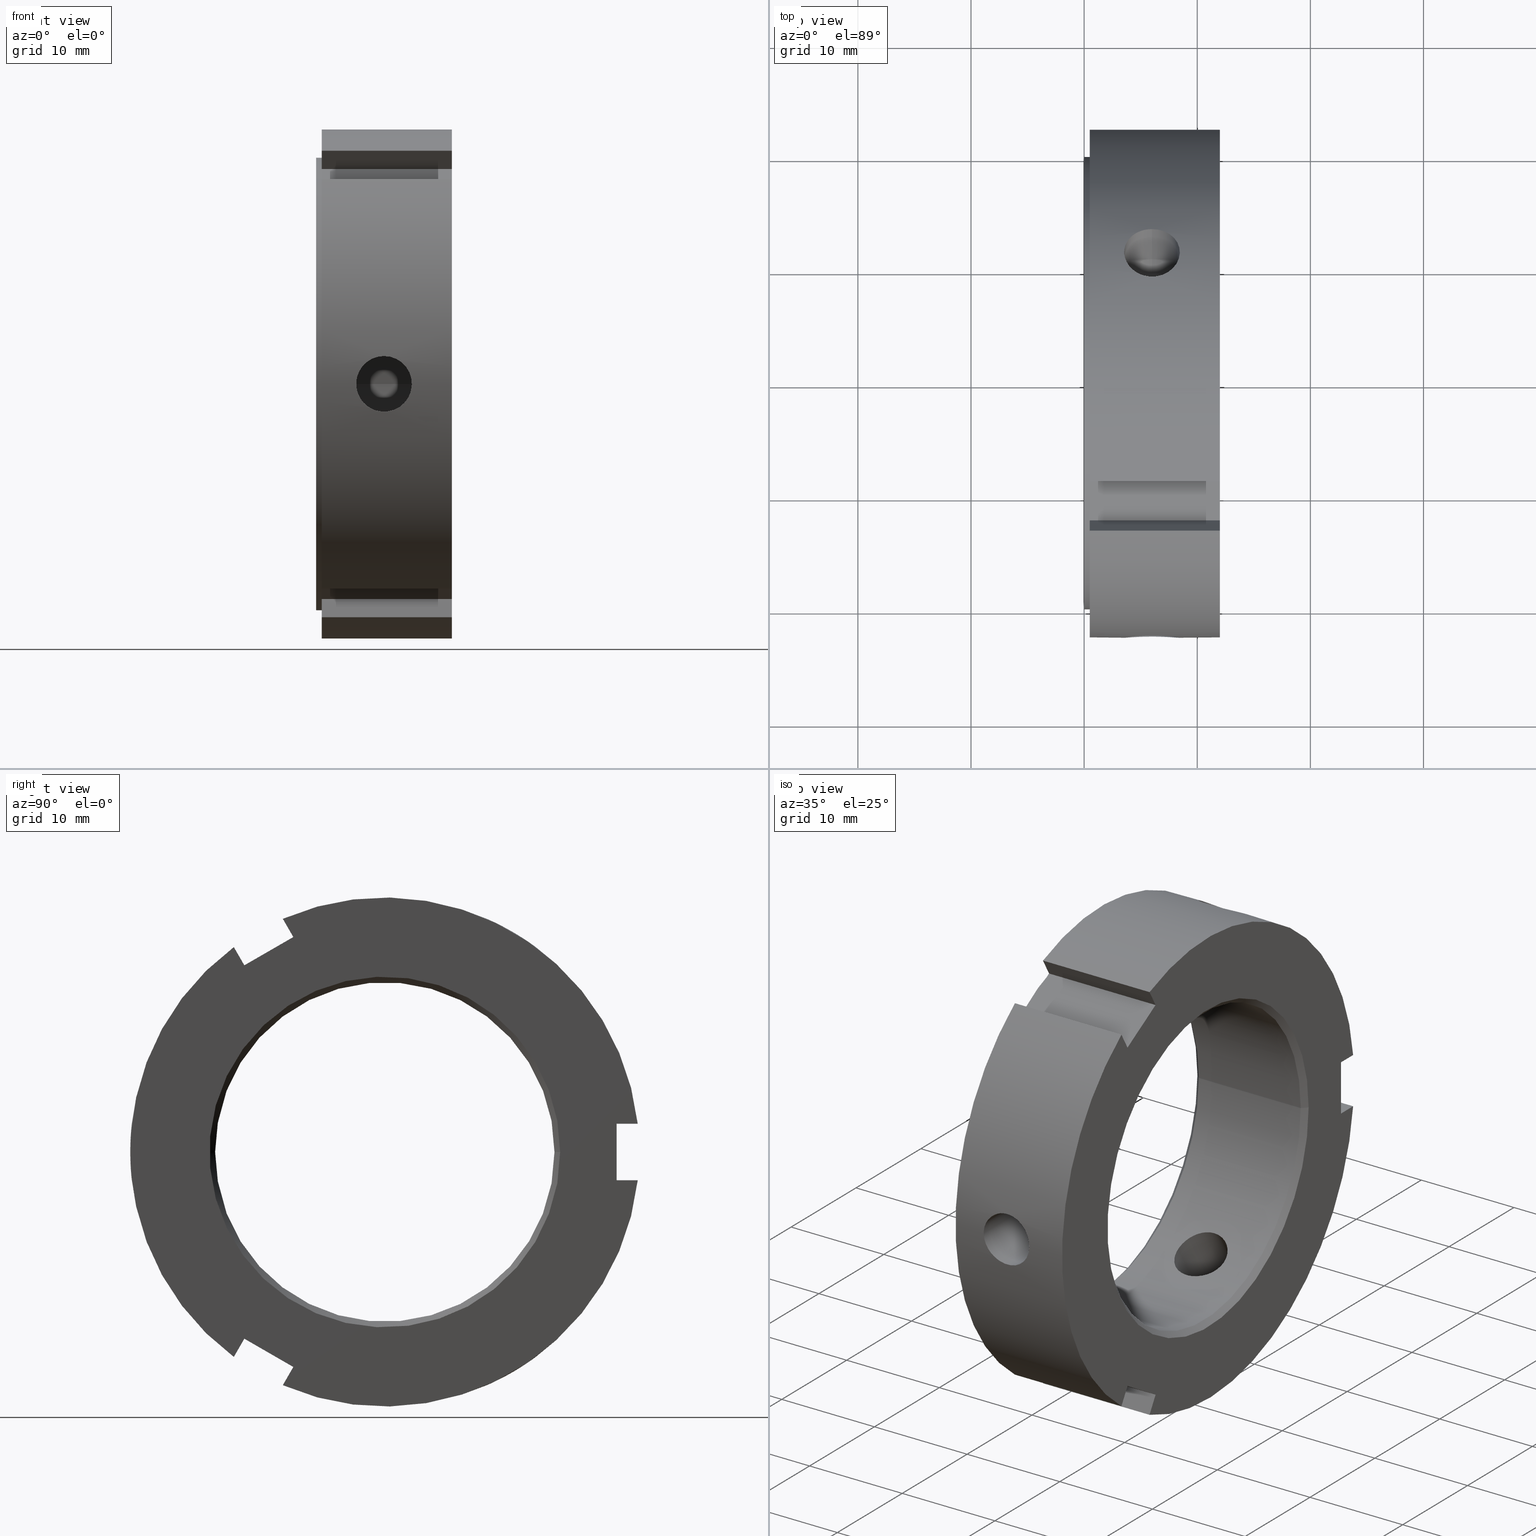
[diagram: canonical four-view strip — front | top / right | iso, engineering-drawing reading convention]
A machine part, canonical four-view strip (front | top / right | iso — engineering-drawing reading convention). The complete STEP part file that produces these views, byte-faithful:
ISO-10303-21;
HEADER;
/****************************************************************
 * Generated by software with PDE/Lib inside                    *
 * PDElib Version v51a, created Thu 01/14/2010                  *
 * ITI Transcendata (http://www.transcendata.com/)              *
 ****************************************************************/
FILE_DESCRIPTION((''),'2;1');
FILE_NAME('\\\\CAD-SVN\\cad-svn\\\X2\628088538AB2\X0\\\FKD\X2\88FD4F5C\X0\SP\\\X2\90E854C130E930A430D630E930EA\X0\\\HP \X2\30A230C330D730C730FC30C87528\X0\CAD\X2\30C730FC30BFFF0867007D42FF09\X0\\\3D data\\ZMT\\FKD ZMT 30.stp','2014-07-16T14:44:36',('fkd-ct1n'),(''),'Autodesk Inventor 2011','Autodesk Inventor 2011','');
FILE_SCHEMA(('AUTOMOTIVE_DESIGN { 1 0 10303 214 1 1 1 1 }'));
ENDSEC;
DATA;
#5=APPLICATION_CONTEXT('automotive design');
#6=APPLICATION_PROTOCOL_DEFINITION('International Standard','automotive_design',2001,#5);
#7=PRODUCT_CONTEXT('',#5,'mechanical');
#8=PRODUCT('FKD ZMT 30','FKD ZMT 30',$,(#7));
#9=PRODUCT_RELATED_PRODUCT_CATEGORY('part',$,(#8));
#10=PRODUCT_DEFINITION_FORMATION('',$,#8);
#11=PRODUCT_DEFINITION_CONTEXT('part definition',#5,'design');
#12=PRODUCT_DEFINITION('',$,#10,#11);
#18=(NAMED_UNIT(*)PLANE_ANGLE_UNIT()SI_UNIT($,.RADIAN.));
#19=DIMENSIONAL_EXPONENTS(0.0,0.0,0.0,0.0,0.0,0.0,0.0);
#20=PLANE_ANGLE_MEASURE_WITH_UNIT(PLANE_ANGLE_MEASURE(0.017453292500000),#18);
#24=(CONVERSION_BASED_UNIT('DEGREE',#20)NAMED_UNIT(#19)PLANE_ANGLE_UNIT());
#28=(NAMED_UNIT(*)SI_UNIT($,.STERADIAN.)SOLID_ANGLE_UNIT());
#32=(LENGTH_UNIT()NAMED_UNIT(*)SI_UNIT(.MILLI.,.METRE.));
#34=UNCERTAINTY_MEASURE_WITH_UNIT(LENGTH_MEASURE(0.010000000000000),#32,'DISTANCE_ACCURACY_VALUE','');
#36=(GEOMETRIC_REPRESENTATION_CONTEXT(3)GLOBAL_UNCERTAINTY_ASSIGNED_CONTEXT((#34))GLOBAL_UNIT_ASSIGNED_CONTEXT((#24,#28,#32))REPRESENTATION_CONTEXT('None','None'));
#37=AXIS2_PLACEMENT_3D('',#38,#39,#40);
#38=CARTESIAN_POINT('',(0.0,0.0,0.0));
#39=DIRECTION('',(0.0,0.0,1.0));
#40=DIRECTION('',(1.0,0.0,0.0));
#41=SHAPE_REPRESENTATION('',(#37),#36);
#42=PRODUCT_DEFINITION_SHAPE('','',#12);
#43=SHAPE_DEFINITION_REPRESENTATION(#42,#41);
#49=(NAMED_UNIT(*)PLANE_ANGLE_UNIT()SI_UNIT($,.RADIAN.));
#50=DIMENSIONAL_EXPONENTS(0.0,0.0,0.0,0.0,0.0,0.0,0.0);
#51=PLANE_ANGLE_MEASURE_WITH_UNIT(PLANE_ANGLE_MEASURE(0.017453292500000),#49);
#55=(CONVERSION_BASED_UNIT('DEGREE',#51)NAMED_UNIT(#50)PLANE_ANGLE_UNIT());
#59=(NAMED_UNIT(*)SI_UNIT($,.STERADIAN.)SOLID_ANGLE_UNIT());
#63=(LENGTH_UNIT()NAMED_UNIT(*)SI_UNIT(.MILLI.,.METRE.));
#65=UNCERTAINTY_MEASURE_WITH_UNIT(LENGTH_MEASURE(0.000001000000000),#63,'DISTANCE_ACCURACY_VALUE','');
#67=(GEOMETRIC_REPRESENTATION_CONTEXT(3)GLOBAL_UNCERTAINTY_ASSIGNED_CONTEXT((#65))GLOBAL_UNIT_ASSIGNED_CONTEXT((#55,#59,#63))REPRESENTATION_CONTEXT('','3D'));
#68=CARTESIAN_POINT('',(11.749999999999998,0.0,0.0));
#69=DIRECTION('',(1.0,0.0,0.0));
#70=DIRECTION('',(0.0,-1.0,0.0));
#71=AXIS2_PLACEMENT_3D('',#68,#69,#70);
#72=CONICAL_SURFACE('',#71,15.250000000000000,45.000000000000021);
#73=CARTESIAN_POINT('',(11.999999999999996,15.500000000000000,1.898203E-015));
#74=VERTEX_POINT('',#73);
#75=CARTESIAN_POINT('',(11.999999999999996,0.0,0.0));
#76=DIRECTION('',(1.0,0.0,0.0));
#77=DIRECTION('',(0.0,-1.0,0.0));
#78=AXIS2_PLACEMENT_3D('',#75,#76,#77);
#79=CIRCLE('',#78,15.500000000000000);
#80=EDGE_CURVE('',#74,#74,#79,.T.);
#81=ORIENTED_EDGE('',*,*,#80,.T.);
#82=EDGE_LOOP('',(#81));
#83=FACE_OUTER_BOUND('',#82,.T.);
#84=CARTESIAN_POINT('',(11.499999999999996,15.0,-1.836970E-015));
#85=VERTEX_POINT('',#84);
#86=CARTESIAN_POINT('',(11.499999999999996,0.0,0.0));
#87=DIRECTION('',(-1.0,0.0,0.0));
#88=DIRECTION('',(0.0,-1.0,0.0));
#89=AXIS2_PLACEMENT_3D('',#86,#87,#88);
#90=CIRCLE('',#89,15.0);
#91=EDGE_CURVE('',#85,#85,#90,.T.);
#92=ORIENTED_EDGE('',*,*,#91,.T.);
#93=EDGE_LOOP('',(#92));
#94=FACE_BOUND('',#93,.T.);
#95=ADVANCED_FACE('',(#83,#94),#72,.F.);
#96=CARTESIAN_POINT('',(5.999999999999996,0.0,0.0));
#97=DIRECTION('',(1.0,0.0,0.0));
#98=DIRECTION('',(0.0,1.0,0.0));
#99=AXIS2_PLACEMENT_3D('',#96,#97,#98);
#100=CYLINDRICAL_SURFACE('',#99,15.0);
#101=CARTESIAN_POINT('',(0.499999999999996,15.0,1.836970E-015));
#102=VERTEX_POINT('',#101);
#103=CARTESIAN_POINT('',(0.499999999999996,0.0,0.0));
#104=DIRECTION('',(1.0,0.0,0.0));
#105=DIRECTION('',(0.0,-1.0,0.0));
#106=AXIS2_PLACEMENT_3D('',#103,#104,#105);
#107=CIRCLE('',#106,15.0);
#108=EDGE_CURVE('',#102,#102,#107,.T.);
#109=ORIENTED_EDGE('',*,*,#108,.F.);
#110=EDGE_LOOP('',(#109));
#111=FACE_OUTER_BOUND('',#110,.T.);
#112=CARTESIAN_POINT('',(5.999999999999995,9.527700645279179,11.585461596930299));
#113=VERTEX_POINT('',#112);
#114=CARTESIAN_POINT('',(5.999999999999995,9.527700645279175,11.585461596930299));
#115=CARTESIAN_POINT('',(5.690701021672715,9.527700645279175,11.585461596930299));
#116=CARTESIAN_POINT('',(5.361174964781096,9.479419812042275,11.625692621913288));
#117=CARTESIAN_POINT('',(4.755621264227968,9.281214361478437,11.784531755638657));
#118=CARTESIAN_POINT('',(4.479544766165401,9.131027314108236,11.902625614815321));
#119=CARTESIAN_POINT('',(4.043616630616774,8.778934752417003,12.164639680096281));
#120=CARTESIAN_POINT('',(3.854499635617677,8.553352753598116,12.326077867837174));
#121=CARTESIAN_POINT('',(3.603426014287461,8.047965060427615,12.661844151364663));
#122=CARTESIAN_POINT('',(3.541499999999993,7.767854087497213,12.835735427246515));
#123=CARTESIAN_POINT('',(3.541499999999995,7.232145912502784,13.145026686286634));
#124=CARTESIAN_POINT('',(3.603426014287466,6.941496163627408,13.300664266782212));
#125=CARTESIAN_POINT('',(3.854499635617683,6.398020185773064,13.570459706064138));
#126=CARTESIAN_POINT('',(4.043616630616775,6.145419614639087,13.685100353807318));
#127=CARTESIAN_POINT('',(4.479544766165402,5.742462497111326,13.859014424074982));
#128=CARTESIAN_POINT('',(4.755621264227972,5.565096691348296,13.930033292828623));
#129=CARTESIAN_POINT('',(5.361174964781100,5.328435241145096,14.022264681322763));
#130=CARTESIAN_POINT('',(5.690701021672715,5.269453734871088,14.043961596930304));
#131=CARTESIAN_POINT('',(6.309298978327273,5.269453734871088,14.043961596930304));
#132=CARTESIAN_POINT('',(6.638825035218885,5.328435241145096,14.022264681322763));
#133=CARTESIAN_POINT('',(7.244378735772017,5.565096691348296,13.930033292828622));
#134=CARTESIAN_POINT('',(7.520455233834587,5.742462497111327,13.859014424074982));
#135=CARTESIAN_POINT('',(7.956383369383212,6.145419614639087,13.685100353807318));
#136=CARTESIAN_POINT('',(8.145500364382306,6.398020185773064,13.570459706064138));
#137=CARTESIAN_POINT('',(8.396573985712523,6.941496163627408,13.300664266782212));
#138=CARTESIAN_POINT('',(8.458499999999994,7.232145912502784,13.145026686286634));
#139=CARTESIAN_POINT('',(8.458499999999996,7.767854087497214,12.835735427246515));
#140=CARTESIAN_POINT('',(8.396573985712529,8.047965060427615,12.661844151364663));
#141=CARTESIAN_POINT('',(8.145500364382311,8.553352753598116,12.326077867837173));
#142=CARTESIAN_POINT('',(7.956383369383215,8.778934752417003,12.164639680096281));
#143=CARTESIAN_POINT('',(7.520455233834589,9.131027314108236,11.902625614815319));
#144=CARTESIAN_POINT('',(7.244378735772021,9.281214361478437,11.784531755638657));
#145=CARTESIAN_POINT('',(6.638825035218892,9.479419812042274,11.625692621913288));
#146=CARTESIAN_POINT('',(6.309298978327273,9.527700645279175,11.585461596930299));
#147=CARTESIAN_POINT('',(5.999999999999995,9.527700645279175,11.585461596930299));
#148=B_SPLINE_CURVE_WITH_KNOTS('',3,(#114,#115,#116,#117,#118,#119,#120,#121,#122,#123,#124,#125,#126,#127,#128,#129,#130,#131,#132,#133,#134,#135,#136,#137,#138,#139,#140,#141,#142,#143,#144,#145,#146,#147),.UNSPECIFIED.,.T.,.U.,(4,2,2,2,2,2,2,2,2,2,2,2,2,2,2,2,4),(0.0,0.092789693498184,0.185579386996367,0.278366764708402,0.371154142420438,0.463941520132473,0.556728897844508,0.649518591342692,0.742308284840875,0.835097978339059,0.927887671837242,1.020675049549278,1.113462427261313,1.206249804973348,1.299037182685383,1.391826876183567,1.484616569681751),.UNSPECIFIED.);
#149=EDGE_CURVE('',#113,#113,#148,.T.);
#150=ORIENTED_EDGE('',*,*,#149,.T.);
#151=EDGE_LOOP('',(#150));
#152=FACE_BOUND('',#151,.T.);
#153=CARTESIAN_POINT('',(5.999999999999995,5.269453734871084,-14.043961596930306));
#154=VERTEX_POINT('',#153);
#155=CARTESIAN_POINT('',(5.999999999999995,5.269453734871085,-14.043961596930304));
#156=CARTESIAN_POINT('',(5.690701021672715,5.269453734871085,-14.043961596930304));
#157=CARTESIAN_POINT('',(5.361174964781102,5.328435241145092,-14.022264681322763));
#158=CARTESIAN_POINT('',(4.755621264227973,5.565096691348294,-13.930033292828625));
#159=CARTESIAN_POINT('',(4.479544766165403,5.742462497111327,-13.859014424074987));
#160=CARTESIAN_POINT('',(4.043616630616777,6.145419614639089,-13.685100353807321));
#161=CARTESIAN_POINT('',(3.854499635617676,6.398020185773067,-13.570459706064135));
#162=CARTESIAN_POINT('',(3.603426014287461,6.941496163627411,-13.300664266782210));
#163=CARTESIAN_POINT('',(3.541499999999994,7.232145912502784,-13.145026686286636));
#164=CARTESIAN_POINT('',(3.541499999999994,7.767854087497215,-12.835735427246519));
#165=CARTESIAN_POINT('',(3.603426014287464,8.047965060427613,-12.661844151364665));
#166=CARTESIAN_POINT('',(3.854499635617681,8.553352753598116,-12.326077867837174));
#167=CARTESIAN_POINT('',(4.043616630616774,8.778934752417008,-12.164639680096286));
#168=CARTESIAN_POINT('',(4.479544766165402,9.131027314108239,-11.902625614815323));
#169=CARTESIAN_POINT('',(4.755621264227973,9.281214361478437,-11.784531755638664));
#170=CARTESIAN_POINT('',(5.361174964781101,9.479419812042272,-11.625692621913295));
#171=CARTESIAN_POINT('',(5.690701021672715,9.527700645279172,-11.585461596930298));
#172=CARTESIAN_POINT('',(6.309298978327273,9.527700645279172,-11.585461596930298));
#173=CARTESIAN_POINT('',(6.638825035218885,9.479419812042272,-11.625692621913293));
#174=CARTESIAN_POINT('',(7.244378735772017,9.281214361478435,-11.784531755638660));
#175=CARTESIAN_POINT('',(7.520455233834587,9.131027314108239,-11.902625614815324));
#176=CARTESIAN_POINT('',(7.956383369383214,8.778934752417008,-12.164639680096286));
#177=CARTESIAN_POINT('',(8.145500364382308,8.553352753598118,-12.326077867837174));
#178=CARTESIAN_POINT('',(8.396573985712525,8.047965060427615,-12.661844151364665));
#179=CARTESIAN_POINT('',(8.458499999999994,7.767854087497215,-12.835735427246519));
#180=CARTESIAN_POINT('',(8.458499999999994,7.232145912502784,-13.145026686286638));
#181=CARTESIAN_POINT('',(8.396573985712525,6.941496163627407,-13.300664266782212));
#182=CARTESIAN_POINT('',(8.145500364382309,6.398020185773063,-13.570459706064138));
#183=CARTESIAN_POINT('',(7.956383369383212,6.145419614639089,-13.685100353807321));
#184=CARTESIAN_POINT('',(7.520455233834584,5.742462497111327,-13.859014424074987));
#185=CARTESIAN_POINT('',(7.244378735772016,5.565096691348294,-13.930033292828625));
#186=CARTESIAN_POINT('',(6.638825035218886,5.328435241145092,-14.022264681322763));
#187=CARTESIAN_POINT('',(6.309298978327272,5.269453734871085,-14.043961596930304));
#188=CARTESIAN_POINT('',(5.999999999999993,5.269453734871085,-14.043961596930304));
#189=B_SPLINE_CURVE_WITH_KNOTS('',3,(#155,#156,#157,#158,#159,#160,#161,#162,#163,#164,#165,#166,#167,#168,#169,#170,#171,#172,#173,#174,#175,#176,#177,#178,#179,#180,#181,#182,#183,#184,#185,#186,#187,#188),.UNSPECIFIED.,.T.,.U.,(4,2,2,2,2,2,2,2,2,2,2,2,2,2,2,2,4),(0.0,0.092789693498184,0.185579386996367,0.278366764708403,0.371154142420438,0.463941520132473,0.556728897844509,0.649518591342692,0.742308284840876,0.835097978339059,0.927887671837243,1.020675049549278,1.113462427261314,1.206249804973349,1.299037182685384,1.391826876183568,1.484616569681752),.UNSPECIFIED.);
#190=EDGE_CURVE('',#154,#154,#189,.T.);
#191=ORIENTED_EDGE('',*,*,#190,.T.);
#192=EDGE_LOOP('',(#191));
#193=FACE_BOUND('',#192,.T.);
#194=CARTESIAN_POINT('',(5.999999999999995,-14.797154380150259,2.458500000000000));
#195=VERTEX_POINT('',#194);
#196=CARTESIAN_POINT('',(5.999999999999995,-14.797154380150259,2.458500000000000));
#197=CARTESIAN_POINT('',(5.690701021672715,-14.797154380150259,2.458500000000000));
#198=CARTESIAN_POINT('',(5.361174964781097,-14.807855053187362,2.396572059409469));
#199=CARTESIAN_POINT('',(4.755621264227968,-14.846311052826726,2.145501537189962));
#200=CARTESIAN_POINT('',(4.479544766165402,-14.873489811219564,1.956388809259662));
#201=CARTESIAN_POINT('',(4.043616630616775,-14.924354367056093,1.520460673711035));
#202=CARTESIAN_POINT('',(3.854499635617680,-14.951372939371181,1.244381838226960));
#203=CARTESIAN_POINT('',(3.603426014287464,-14.989461224055026,0.638820115417546));
#204=CARTESIAN_POINT('',(3.541499999999994,-15.0,0.309291259040118));
#205=CARTESIAN_POINT('',(3.541499999999994,-15.0,-0.309291259040118));
#206=CARTESIAN_POINT('',(3.603426014287463,-14.989461224055026,-0.638820115417547));
#207=CARTESIAN_POINT('',(3.854499635617680,-14.951372939371181,-1.244381838226960));
#208=CARTESIAN_POINT('',(4.043616630616775,-14.924354367056093,-1.520460673711035));
#209=CARTESIAN_POINT('',(4.479544766165402,-14.873489811219564,-1.956388809259662));
#210=CARTESIAN_POINT('',(4.755621264227968,-14.846311052826726,-2.145501537189962));
#211=CARTESIAN_POINT('',(5.361174964781097,-14.807855053187362,-2.396572059409469));
#212=CARTESIAN_POINT('',(5.690701021672715,-14.797154380150259,-2.458500000000000));
#213=CARTESIAN_POINT('',(6.309298978327274,-14.797154380150259,-2.458500000000000));
#214=CARTESIAN_POINT('',(6.638825035218892,-14.807855053187362,-2.396572059409469));
#215=CARTESIAN_POINT('',(7.244378735772021,-14.846311052826726,-2.145501537189961));
#216=CARTESIAN_POINT('',(7.520455233834587,-14.873489811219564,-1.956388809259662));
#217=CARTESIAN_POINT('',(7.956383369383213,-14.924354367056093,-1.520460673711035));
#218=CARTESIAN_POINT('',(8.145500364382309,-14.951372939371181,-1.244381838226960));
#219=CARTESIAN_POINT('',(8.396573985712525,-14.989461224055026,-0.638820115417545));
#220=CARTESIAN_POINT('',(8.458499999999994,-15.0,-0.309291259040118));
#221=CARTESIAN_POINT('',(8.458499999999996,-15.0,0.309291259040117));
#222=CARTESIAN_POINT('',(8.396573985712525,-14.989461224055026,0.638820115417545));
#223=CARTESIAN_POINT('',(8.145500364382309,-14.951372939371181,1.244381838226959));
#224=CARTESIAN_POINT('',(7.956383369383215,-14.924354367056093,1.520460673711035));
#225=CARTESIAN_POINT('',(7.520455233834587,-14.873489811219564,1.956388809259662));
#226=CARTESIAN_POINT('',(7.244378735772020,-14.846311052826726,2.145501537189962));
#227=CARTESIAN_POINT('',(6.638825035218891,-14.807855053187362,2.396572059409469));
#228=CARTESIAN_POINT('',(6.309298978327274,-14.797154380150259,2.458500000000000));
#229=CARTESIAN_POINT('',(5.999999999999995,-14.797154380150259,2.458500000000000));
#230=B_SPLINE_CURVE_WITH_KNOTS('',3,(#196,#197,#198,#199,#200,#201,#202,#203,#204,#205,#206,#207,#208,#209,#210,#211,#212,#213,#214,#215,#216,#217,#218,#219,#220,#221,#222,#223,#224,#225,#226,#227,#228,#229),.UNSPECIFIED.,.T.,.U.,(4,2,2,2,2,2,2,2,2,2,2,2,2,2,2,2,4),(0.0,0.092789693498184,0.185579386996367,0.278366764708402,0.371154142420438,0.463941520132473,0.556728897844508,0.649518591342692,0.742308284840875,0.835097978339059,0.927887671837242,1.020675049549278,1.113462427261313,1.206249804973348,1.299037182685384,1.391826876183567,1.484616569681751),.UNSPECIFIED.);
#231=EDGE_CURVE('',#195,#195,#230,.T.);
#232=ORIENTED_EDGE('',*,*,#231,.T.);
#233=EDGE_LOOP('',(#232));
#234=FACE_BOUND('',#233,.T.);
#235=ORIENTED_EDGE('',*,*,#91,.F.);
#236=EDGE_LOOP('',(#235));
#237=FACE_BOUND('',#236,.T.);
#238=ADVANCED_FACE('',(#111,#152,#193,#234,#237),#100,.F.);
#239=CARTESIAN_POINT('',(11.999999999999996,18.750000000000000,0.0));
#240=DIRECTION('',(1.0,0.0,0.0));
#241=DIRECTION('',(0.0,0.0,-1.0));
#242=AXIS2_PLACEMENT_3D('',#239,#240,#241);
#243=PLANE('',#242);
#244=CARTESIAN_POINT('',(11.999999999999996,-13.345403396960053,-18.114916731037077));
#245=VERTEX_POINT('',#244);
#246=CARTESIAN_POINT('',(11.999999999999996,-12.415063509461104,-16.503520777580988));
#247=VERTEX_POINT('',#246);
#248=CARTESIAN_POINT('',(11.999999999999996,-13.345403396960059,-18.114916731037077));
#249=DIRECTION('',(0.0,0.500000000000001,0.866025403784438));
#250=VECTOR('',#249,1.860679774997895);
#251=LINE('',#248,#250);
#252=EDGE_CURVE('',#245,#247,#251,.T.);
#253=ORIENTED_EDGE('',*,*,#252,.T.);
#254=CARTESIAN_POINT('',(11.999999999999996,-8.084936490538913,-19.003520777580988));
#255=VERTEX_POINT('',#254);
#256=CARTESIAN_POINT('',(11.999999999999996,-12.415063509461110,-16.503520777580988));
#257=DIRECTION('',(0.0,0.866025403784438,-0.500000000000000));
#258=VECTOR('',#257,4.999999999999998);
#259=LINE('',#256,#258);
#260=EDGE_CURVE('',#247,#255,#259,.T.);
#261=ORIENTED_EDGE('',*,*,#260,.T.);
#262=CARTESIAN_POINT('',(11.999999999999996,-9.015276378037862,-20.614916731037077));
#263=VERTEX_POINT('',#262);
#264=CARTESIAN_POINT('',(11.999999999999996,-8.084936490538915,-19.003520777580988));
#265=DIRECTION('',(0.0,-0.500000000000000,-0.866025403784439));
#266=VECTOR('',#265,1.860679774997898);
#267=LINE('',#264,#266);
#268=EDGE_CURVE('',#255,#263,#267,.T.);
#269=ORIENTED_EDGE('',*,*,#268,.T.);
#270=CARTESIAN_POINT('',(11.999999999999996,22.360679774997894,-2.499999999999999));
#271=VERTEX_POINT('',#270);
#272=CARTESIAN_POINT('',(11.999999999999995,0.0,0.0));
#273=DIRECTION('',(1.0,0.0,0.0));
#274=DIRECTION('',(0.0,1.0,0.0));
#275=AXIS2_PLACEMENT_3D('',#272,#273,#274);
#276=CIRCLE('',#275,22.500000000000000);
#277=EDGE_CURVE('',#263,#271,#276,.T.);
#278=ORIENTED_EDGE('',*,*,#277,.T.);
#279=CARTESIAN_POINT('',(11.999999999999996,20.500000000000000,-2.499999999999999));
#280=VERTEX_POINT('',#279);
#281=CARTESIAN_POINT('',(11.999999999999996,22.360679774997894,-2.499999999999999));
#282=DIRECTION('',(0.0,-1.0,0.0));
#283=VECTOR('',#282,1.860679774997895);
#284=LINE('',#281,#283);
#285=EDGE_CURVE('',#271,#280,#284,.T.);
#286=ORIENTED_EDGE('',*,*,#285,.T.);
#287=CARTESIAN_POINT('',(11.999999999999996,20.500000000000000,2.499999999999999));
#288=VERTEX_POINT('',#287);
#289=CARTESIAN_POINT('',(11.999999999999996,20.500000000000000,-2.500000000000000));
#290=DIRECTION('',(0.0,0.0,1.0));
#291=VECTOR('',#290,4.999999999999998);
#292=LINE('',#289,#291);
#293=EDGE_CURVE('',#280,#288,#292,.T.);
#294=ORIENTED_EDGE('',*,*,#293,.T.);
#295=CARTESIAN_POINT('',(11.999999999999996,22.360679774997894,2.499999999999999));
#296=VERTEX_POINT('',#295);
#297=CARTESIAN_POINT('',(11.999999999999996,20.500000000000000,2.499999999999999));
#298=DIRECTION('',(0.0,1.0,0.0));
#299=VECTOR('',#298,1.860679774997895);
#300=LINE('',#297,#299);
#301=EDGE_CURVE('',#288,#296,#300,.T.);
#302=ORIENTED_EDGE('',*,*,#301,.T.);
#303=CARTESIAN_POINT('',(11.999999999999996,-9.015276378037846,20.614916731037084));
#304=VERTEX_POINT('',#303);
#305=CARTESIAN_POINT('',(11.999999999999995,0.0,0.0));
#306=DIRECTION('',(1.0,0.0,0.0));
#307=DIRECTION('',(0.0,1.0,0.0));
#308=AXIS2_PLACEMENT_3D('',#305,#306,#307);
#309=CIRCLE('',#308,22.500000000000000);
#310=EDGE_CURVE('',#296,#304,#309,.T.);
#311=ORIENTED_EDGE('',*,*,#310,.T.);
#312=CARTESIAN_POINT('',(11.999999999999996,-8.084936490538899,19.003520777580995));
#313=VERTEX_POINT('',#312);
#314=CARTESIAN_POINT('',(11.999999999999996,-9.015276378037848,20.614916731037088));
#315=DIRECTION('',(0.0,0.499999999999999,-0.866025403784439));
#316=VECTOR('',#315,1.860679774997897);
#317=LINE('',#314,#316);
#318=EDGE_CURVE('',#304,#313,#317,.T.);
#319=ORIENTED_EDGE('',*,*,#318,.T.);
#320=CARTESIAN_POINT('',(11.999999999999996,-12.415063509461090,16.503520777580995));
#321=VERTEX_POINT('',#320);
#322=CARTESIAN_POINT('',(11.999999999999996,-8.084936490538899,19.003520777580992));
#323=DIRECTION('',(0.0,-0.866025403784439,-0.499999999999999));
#324=VECTOR('',#323,4.999999999999999);
#325=LINE('',#322,#324);
#326=EDGE_CURVE('',#313,#321,#325,.T.);
#327=ORIENTED_EDGE('',*,*,#326,.T.);
#328=CARTESIAN_POINT('',(11.999999999999996,-13.345403396960037,18.114916731037084));
#329=VERTEX_POINT('',#328);
#330=CARTESIAN_POINT('',(11.999999999999996,-12.415063509461094,16.503520777580995));
#331=DIRECTION('',(0.0,-0.499999999999999,0.866025403784439));
#332=VECTOR('',#331,1.860679774997897);
#333=LINE('',#330,#332);
#334=EDGE_CURVE('',#321,#329,#333,.T.);
#335=ORIENTED_EDGE('',*,*,#334,.T.);
#336=CARTESIAN_POINT('',(11.999999999999995,0.0,0.0));
#337=DIRECTION('',(1.0,0.0,0.0));
#338=DIRECTION('',(0.0,1.0,0.0));
#339=AXIS2_PLACEMENT_3D('',#336,#337,#338);
#340=CIRCLE('',#339,22.500000000000000);
#341=EDGE_CURVE('',#329,#245,#340,.T.);
#342=ORIENTED_EDGE('',*,*,#341,.T.);
#343=EDGE_LOOP('',(#253,#261,#269,#278,#286,#294,#302,#311,#319,#327,#335,#342));
#344=FACE_OUTER_BOUND('',#343,.T.);
#345=ORIENTED_EDGE('',*,*,#80,.F.);
#346=EDGE_LOOP('',(#345));
#347=FACE_BOUND('',#346,.T.);
#348=ADVANCED_FACE('',(#344,#347),#243,.T.);
#349=CARTESIAN_POINT('',(0.249999999999996,0.0,0.0));
#350=DIRECTION('',(-1.0,0.0,0.0));
#351=DIRECTION('',(0.0,-1.0,0.0));
#352=AXIS2_PLACEMENT_3D('',#349,#350,#351);
#353=CONICAL_SURFACE('',#352,15.250000000000000,44.999999999999993);
#354=ORIENTED_EDGE('',*,*,#108,.T.);
#355=EDGE_LOOP('',(#354));
#356=FACE_OUTER_BOUND('',#355,.T.);
#357=CARTESIAN_POINT('',(-4.093947E-015,15.500000000000000,-1.898203E-015));
#358=VERTEX_POINT('',#357);
#359=CARTESIAN_POINT('',(-4.093947E-015,0.0,0.0));
#360=DIRECTION('',(-1.0,0.0,0.0));
#361=DIRECTION('',(0.0,-1.0,0.0));
#362=AXIS2_PLACEMENT_3D('',#359,#360,#361);
#363=CIRCLE('',#362,15.500000000000000);
#364=EDGE_CURVE('',#358,#358,#363,.T.);
#365=ORIENTED_EDGE('',*,*,#364,.T.);
#366=EDGE_LOOP('',(#365));
#367=FACE_BOUND('',#366,.T.);
#368=ADVANCED_FACE('',(#356,#367),#353,.F.);
#369=CARTESIAN_POINT('',(-4.069772E-015,17.500000000000000,0.0));
#370=DIRECTION('',(-1.0,0.0,0.0));
#371=DIRECTION('',(0.0,0.0,1.0));
#372=AXIS2_PLACEMENT_3D('',#369,#370,#371);
#373=PLANE('',#372);
#374=CARTESIAN_POINT('',(-4.440892E-015,19.999999999999996,0.0));
#375=VERTEX_POINT('',#374);
#376=CARTESIAN_POINT('',(-4.440892E-015,0.0,0.0));
#377=DIRECTION('',(1.0,0.0,0.0));
#378=DIRECTION('',(0.0,1.0,0.0));
#379=AXIS2_PLACEMENT_3D('',#376,#377,#378);
#380=CIRCLE('',#379,19.999999999999996);
#381=EDGE_CURVE('',#375,#375,#380,.T.);
#382=ORIENTED_EDGE('',*,*,#381,.F.);
#383=EDGE_LOOP('',(#382));
#384=FACE_OUTER_BOUND('',#383,.T.);
#385=ORIENTED_EDGE('',*,*,#364,.F.);
#386=EDGE_LOOP('',(#385));
#387=FACE_BOUND('',#386,.T.);
#388=ADVANCED_FACE('',(#384,#387),#373,.T.);
#389=CARTESIAN_POINT('',(11.999999999999996,-12.415063509461104,-16.503520777580988));
#390=DIRECTION('',(0.0,-0.866025403784438,0.500000000000001));
#391=DIRECTION('',(-1.0,0.0,0.0));
#392=AXIS2_PLACEMENT_3D('',#389,#390,#391);
#393=PLANE('',#392);
#394=CARTESIAN_POINT('',(0.499999999999994,-12.415063509461104,-16.503520777580988));
#395=VERTEX_POINT('',#394);
#396=CARTESIAN_POINT('',(0.499999999999994,-13.345403396960050,-18.114916731037070));
#397=VERTEX_POINT('',#396);
#398=CARTESIAN_POINT('',(0.499999999999993,-12.415063509461108,-16.503520777580992));
#399=DIRECTION('',(0.0,-0.500000000000000,-0.866025403784438));
#400=VECTOR('',#399,1.860679774997886);
#401=LINE('',#398,#400);
#402=EDGE_CURVE('',#395,#397,#401,.T.);
#403=ORIENTED_EDGE('',*,*,#402,.F.);
#404=CARTESIAN_POINT('',(11.999999999999996,-12.415063509461104,-16.503520777580988));
#405=DIRECTION('',(-1.0,0.0,0.0));
#406=VECTOR('',#405,11.500000000000004);
#407=LINE('',#404,#406);
#408=EDGE_CURVE('',#247,#395,#407,.T.);
#409=ORIENTED_EDGE('',*,*,#408,.F.);
#410=ORIENTED_EDGE('',*,*,#252,.F.);
#411=CARTESIAN_POINT('',(0.499999999999994,-13.345403396960053,-18.114916731037077));
#412=DIRECTION('',(1.0,0.0,0.0));
#413=VECTOR('',#412,11.500000000000004);
#414=LINE('',#411,#413);
#415=EDGE_CURVE('',#397,#245,#414,.T.);
#416=ORIENTED_EDGE('',*,*,#415,.F.);
#417=EDGE_LOOP('',(#403,#409,#410,#416));
#418=FACE_OUTER_BOUND('',#417,.T.);
#419=ADVANCED_FACE('',(#418),#393,.F.);
#420=CARTESIAN_POINT('',(11.999999999999996,-9.084936490538917,-20.735571585149867));
#421=DIRECTION('',(0.0,0.866025403784438,-0.500000000000001));
#422=DIRECTION('',(1.0,0.0,0.0));
#423=AXIS2_PLACEMENT_3D('',#420,#421,#422);
#424=PLANE('',#423);
#425=CARTESIAN_POINT('',(0.499999999999994,-9.015276378037859,-20.614916731037070));
#426=VERTEX_POINT('',#425);
#427=CARTESIAN_POINT('',(0.499999999999994,-8.084936490538913,-19.003520777580988));
#428=VERTEX_POINT('',#427);
#429=CARTESIAN_POINT('',(0.499999999999993,-9.015276378037864,-20.614916731037077));
#430=DIRECTION('',(0.0,0.500000000000000,0.866025403784439));
#431=VECTOR('',#430,1.860679774997894);
#432=LINE('',#429,#431);
#433=EDGE_CURVE('',#426,#428,#432,.T.);
#434=ORIENTED_EDGE('',*,*,#433,.F.);
#435=CARTESIAN_POINT('',(11.999999999999996,-9.015276378037862,-20.614916731037077));
#436=DIRECTION('',(-1.0,0.0,0.0));
#437=VECTOR('',#436,11.500000000000004);
#438=LINE('',#435,#437);
#439=EDGE_CURVE('',#263,#426,#438,.T.);
#440=ORIENTED_EDGE('',*,*,#439,.F.);
#441=ORIENTED_EDGE('',*,*,#268,.F.);
#442=CARTESIAN_POINT('',(11.999999999999996,-8.084936490538913,-19.003520777580988));
#443=DIRECTION('',(-1.0,0.0,0.0));
#444=VECTOR('',#443,11.500000000000004);
#445=LINE('',#442,#444);
#446=EDGE_CURVE('',#255,#428,#445,.T.);
#447=ORIENTED_EDGE('',*,*,#446,.T.);
#448=EDGE_LOOP('',(#434,#440,#441,#447));
#449=FACE_OUTER_BOUND('',#448,.T.);
#450=ADVANCED_FACE('',(#449),#424,.F.);
#451=CARTESIAN_POINT('',(11.999999999999996,-8.084936490538913,-19.003520777580988));
#452=DIRECTION('',(0.0,0.500000000000001,0.866025403784438));
#453=DIRECTION('',(0.0,-0.866025403784438,0.500000000000000));
#454=AXIS2_PLACEMENT_3D('',#451,#452,#453);
#455=PLANE('',#454);
#456=CARTESIAN_POINT('',(0.499999999999993,-8.084936490538917,-19.003520777580988));
#457=DIRECTION('',(0.0,-0.866025403784438,0.500000000000000));
#458=VECTOR('',#457,4.999999999999998);
#459=LINE('',#456,#458);
#460=EDGE_CURVE('',#428,#395,#459,.T.);
#461=ORIENTED_EDGE('',*,*,#460,.F.);
#462=ORIENTED_EDGE('',*,*,#446,.F.);
#463=ORIENTED_EDGE('',*,*,#260,.F.);
#464=ORIENTED_EDGE('',*,*,#408,.T.);
#465=EDGE_LOOP('',(#461,#462,#463,#464));
#466=FACE_OUTER_BOUND('',#465,.T.);
#467=ADVANCED_FACE('',(#466),#455,.F.);
#468=CARTESIAN_POINT('',(5.999999999999995,32.332184390614998,56.000986084230497));
#469=DIRECTION('',(0.0,-0.500000000000001,-0.866025403784438));
#470=DIRECTION('',(-1.0,0.0,0.0));
#471=AXIS2_PLACEMENT_3D('',#468,#469,#470);
#472=CYLINDRICAL_SURFACE('',#471,2.458500000000000);
#473=CARTESIAN_POINT('',(5.999999999999995,13.311763771225127,18.139651190116584));
#474=VERTEX_POINT('',#473);
#475=CARTESIAN_POINT('',(5.999999999999993,13.311763771225124,18.139651190116584));
#476=CARTESIAN_POINT('',(6.308960393679367,13.311763771225124,18.139651190116584));
#477=CARTESIAN_POINT('',(6.638344698398967,13.261777622904923,18.176665359321884));
#478=CARTESIAN_POINT('',(7.243994563331620,13.057158723953323,18.324205720284187));
#479=CARTESIAN_POINT('',(7.520281295008822,12.902351376096028,18.434402624333678));
#480=CARTESIAN_POINT('',(7.956561687762608,12.541426215450556,18.681822693873336));
#481=CARTESIAN_POINT('',(8.145728064719988,12.311145769824938,18.835539652057967));
#482=CARTESIAN_POINT('',(8.396704023595197,11.799314472428604,19.160324687455489));
#483=CARTESIAN_POINT('',(8.458499999999996,11.517566249116406,19.331092139196443));
#484=CARTESIAN_POINT('',(8.458499999999994,10.982433750883594,19.640051031103276));
#485=CARTESIAN_POINT('',(8.396704023595195,10.693670687880294,19.798668424092291));
#486=CARTESIAN_POINT('',(8.145728064719984,10.156482947758850,20.079534812390705));
#487=CARTESIAN_POINT('',(7.956561687762608,9.908219934165679,20.202105049204981));
#488=CARTESIAN_POINT('',(7.520281295008823,9.513485288215488,20.390965372419107));
#489=CARTESIAN_POINT('',(7.243994563331622,9.340648295961584,20.469934016331273));
#490=CARTESIAN_POINT('',(6.638344698398967,9.110565145808906,20.573369000436603));
#491=CARTESIAN_POINT('',(6.308960393679368,9.053516860817039,20.598151190116589));
#492=CARTESIAN_POINT('',(5.691039606320620,9.053516860817039,20.598151190116589));
#493=CARTESIAN_POINT('',(5.361655301601022,9.110565145808906,20.573369000436603));
#494=CARTESIAN_POINT('',(4.756005436668368,9.340648295961584,20.469934016331273));
#495=CARTESIAN_POINT('',(4.479718704991168,9.513485288215488,20.390965372419103));
#496=CARTESIAN_POINT('',(4.043438312237381,9.908219934165679,20.202105049204981));
#497=CARTESIAN_POINT('',(3.854271935280007,10.156482947758846,20.079534812390705));
#498=CARTESIAN_POINT('',(3.603295976404796,10.693670687880292,19.798668424092291));
#499=CARTESIAN_POINT('',(3.541499999999994,10.982433750883590,19.640051031103273));
#500=CARTESIAN_POINT('',(3.541499999999993,11.517566249116410,19.331092139196443));
#501=CARTESIAN_POINT('',(3.603295976404792,11.799314472428604,19.160324687455489));
#502=CARTESIAN_POINT('',(3.854271935280002,12.311145769824938,18.835539652057967));
#503=CARTESIAN_POINT('',(4.043438312237379,12.541426215450556,18.681822693873336));
#504=CARTESIAN_POINT('',(4.479718704991166,12.902351376096028,18.434402624333678));
#505=CARTESIAN_POINT('',(4.756005436668367,13.057158723953323,18.324205720284187));
#506=CARTESIAN_POINT('',(5.361655301601022,13.261777622904923,18.176665359321884));
#507=CARTESIAN_POINT('',(5.691039606320620,13.311763771225124,18.139651190116584));
#508=CARTESIAN_POINT('',(5.999999999999995,13.311763771225124,18.139651190116584));
#509=B_SPLINE_CURVE_WITH_KNOTS('',3,(#475,#476,#477,#478,#479,#480,#481,#482,#483,#484,#485,#486,#487,#488,#489,#490,#491,#492,#493,#494,#495,#496,#497,#498,#499,#500,#501,#502,#503,#504,#505,#506,#507,#508),.UNSPECIFIED.,.T.,.U.,(4,2,2,2,2,2,2,2,2,2,2,2,2,2,2,2,4),(0.0,0.092688118103812,0.185376236207624,0.278063903779674,0.370751571351723,0.463439238923773,0.556126906495822,0.648815024599634,0.741503142703446,0.834191260807258,0.926879378911070,1.019567046483120,1.112254714055169,1.204942381627218,1.297630049199268,1.390318167303080,1.483006285406892),.UNSPECIFIED.);
#510=EDGE_CURVE('',#474,#474,#509,.T.);
#511=ORIENTED_EDGE('',*,*,#510,.F.);
#512=EDGE_LOOP('',(#511));
#513=FACE_OUTER_BOUND('',#512,.T.);
#514=ORIENTED_EDGE('',*,*,#149,.F.);
#515=EDGE_LOOP('',(#514));
#516=FACE_BOUND('',#515,.T.);
#517=ADVANCED_FACE('',(#513,#516),#472,.F.);
#518=CARTESIAN_POINT('',(11.999999999999996,-8.084936490538899,19.003520777580995));
#519=DIRECTION('',(0.0,0.866025403784439,0.500000000000000));
#520=DIRECTION('',(-1.0,0.0,0.0));
#521=AXIS2_PLACEMENT_3D('',#518,#519,#520);
#522=PLANE('',#521);
#523=CARTESIAN_POINT('',(0.499999999999994,-8.084936490538899,19.003520777580995));
#524=VERTEX_POINT('',#523);
#525=CARTESIAN_POINT('',(0.499999999999994,-9.015276378037845,20.614916731037081));
#526=VERTEX_POINT('',#525);
#527=CARTESIAN_POINT('',(0.499999999999995,-8.084936490538899,19.003520777580995));
#528=DIRECTION('',(0.0,-0.499999999999999,0.866025403784439));
#529=VECTOR('',#528,1.860679774997892);
#530=LINE('',#527,#529);
#531=EDGE_CURVE('',#524,#526,#530,.T.);
#532=ORIENTED_EDGE('',*,*,#531,.F.);
#533=CARTESIAN_POINT('',(11.999999999999996,-8.084936490538899,19.003520777580995));
#534=DIRECTION('',(-1.0,0.0,0.0));
#535=VECTOR('',#534,11.500000000000004);
#536=LINE('',#533,#535);
#537=EDGE_CURVE('',#313,#524,#536,.T.);
#538=ORIENTED_EDGE('',*,*,#537,.F.);
#539=ORIENTED_EDGE('',*,*,#318,.F.);
#540=CARTESIAN_POINT('',(0.499999999999994,-9.015276378037845,20.614916731037081));
#541=DIRECTION('',(1.0,0.0,0.0));
#542=VECTOR('',#541,11.500000000000004);
#543=LINE('',#540,#542);
#544=EDGE_CURVE('',#526,#304,#543,.T.);
#545=ORIENTED_EDGE('',*,*,#544,.F.);
#546=EDGE_LOOP('',(#532,#538,#539,#545));
#547=FACE_OUTER_BOUND('',#546,.T.);
#548=ADVANCED_FACE('',(#547),#522,.F.);
#549=CARTESIAN_POINT('',(11.999999999999996,-13.415063509461092,18.235571585149874));
#550=DIRECTION('',(0.0,-0.866025403784439,-0.500000000000000));
#551=DIRECTION('',(1.0,0.0,0.0));
#552=AXIS2_PLACEMENT_3D('',#549,#550,#551);
#553=PLANE('',#552);
#554=CARTESIAN_POINT('',(0.499999999999994,-13.345403396960036,18.114916731037081));
#555=VERTEX_POINT('',#554);
#556=CARTESIAN_POINT('',(0.499999999999994,-12.415063509461090,16.503520777580995));
#557=VERTEX_POINT('',#556);
#558=CARTESIAN_POINT('',(0.499999999999995,-13.345403396960036,18.114916731037084));
#559=DIRECTION('',(0.0,0.499999999999999,-0.866025403784439));
#560=VECTOR('',#559,1.860679774997892);
#561=LINE('',#558,#560);
#562=EDGE_CURVE('',#555,#557,#561,.T.);
#563=ORIENTED_EDGE('',*,*,#562,.F.);
#564=CARTESIAN_POINT('',(11.999999999999996,-13.345403396960037,18.114916731037084));
#565=DIRECTION('',(-1.0,0.0,0.0));
#566=VECTOR('',#565,11.500000000000004);
#567=LINE('',#564,#566);
#568=EDGE_CURVE('',#329,#555,#567,.T.);
#569=ORIENTED_EDGE('',*,*,#568,.F.);
#570=ORIENTED_EDGE('',*,*,#334,.F.);
#571=CARTESIAN_POINT('',(11.999999999999996,-12.415063509461090,16.503520777580995));
#572=DIRECTION('',(-1.0,0.0,0.0));
#573=VECTOR('',#572,11.500000000000004);
#574=LINE('',#571,#573);
#575=EDGE_CURVE('',#321,#557,#574,.T.);
#576=ORIENTED_EDGE('',*,*,#575,.T.);
#577=EDGE_LOOP('',(#563,#569,#570,#576));
#578=FACE_OUTER_BOUND('',#577,.T.);
#579=ADVANCED_FACE('',(#578),#553,.F.);
#580=CARTESIAN_POINT('',(11.999999999999996,-12.415063509461090,16.503520777580995));
#581=DIRECTION('',(0.0,0.500000000000000,-0.866025403784439));
#582=DIRECTION('',(0.0,0.866025403784439,0.500000000000000));
#583=AXIS2_PLACEMENT_3D('',#580,#581,#582);
#584=PLANE('',#583);
#585=CARTESIAN_POINT('',(0.499999999999995,-12.415063509461094,16.503520777580992));
#586=DIRECTION('',(0.0,0.866025403784439,0.500000000000000));
#587=VECTOR('',#586,5.000000000000001);
#588=LINE('',#585,#587);
#589=EDGE_CURVE('',#557,#524,#588,.T.);
#590=ORIENTED_EDGE('',*,*,#589,.F.);
#591=ORIENTED_EDGE('',*,*,#575,.F.);
#592=ORIENTED_EDGE('',*,*,#326,.F.);
#593=ORIENTED_EDGE('',*,*,#537,.T.);
#594=EDGE_LOOP('',(#590,#591,#592,#593));
#595=FACE_OUTER_BOUND('',#594,.T.);
#596=ADVANCED_FACE('',(#595),#584,.F.);
#597=CARTESIAN_POINT('',(5.999999999999995,32.332184390614962,-56.000986084230526));
#598=DIRECTION('',(0.0,-0.500000000000000,0.866025403784439));
#599=DIRECTION('',(-1.0,0.0,0.0));
#600=AXIS2_PLACEMENT_3D('',#597,#598,#599);
#601=CYLINDRICAL_SURFACE('',#600,2.458500000000000);
#602=CARTESIAN_POINT('',(5.999999999999995,9.053516860817028,-20.598151190116592));
#603=VERTEX_POINT('',#602);
#604=CARTESIAN_POINT('',(5.999999999999993,9.053516860817032,-20.598151190116592));
#605=CARTESIAN_POINT('',(6.308960393679367,9.053516860817032,-20.598151190116592));
#606=CARTESIAN_POINT('',(6.638344698398965,9.110565145808900,-20.573369000436607));
#607=CARTESIAN_POINT('',(7.243994563331622,9.340648295961579,-20.469934016331276));
#608=CARTESIAN_POINT('',(7.520281295008822,9.513485288215481,-20.390965372419110));
#609=CARTESIAN_POINT('',(7.956561687762607,9.908219934165674,-20.202105049204981));
#610=CARTESIAN_POINT('',(8.145728064719984,10.156482947758843,-20.079534812390708));
#611=CARTESIAN_POINT('',(8.396704023595195,10.693670687880291,-19.798668424092295));
#612=CARTESIAN_POINT('',(8.458499999999994,10.982433750883587,-19.640051031103280));
#613=CARTESIAN_POINT('',(8.458499999999994,11.517566249116403,-19.331092139196450));
#614=CARTESIAN_POINT('',(8.396704023595195,11.799314472428597,-19.160324687455493));
#615=CARTESIAN_POINT('',(8.145728064719982,12.311145769824934,-18.835539652057975));
#616=CARTESIAN_POINT('',(7.956561687762608,12.541426215450556,-18.681822693873347));
#617=CARTESIAN_POINT('',(7.520281295008820,12.902351376096028,-18.434402624333686));
#618=CARTESIAN_POINT('',(7.243994563331619,13.057158723953322,-18.324205720284191));
#619=CARTESIAN_POINT('',(6.638344698398965,13.261777622904916,-18.176665359321895));
#620=CARTESIAN_POINT('',(6.308960393679368,13.311763771225120,-18.139651190116584));
#621=CARTESIAN_POINT('',(5.691039606320620,13.311763771225120,-18.139651190116584));
#622=CARTESIAN_POINT('',(5.361655301601022,13.261777622904917,-18.176665359321891));
#623=CARTESIAN_POINT('',(4.756005436668367,13.057158723953320,-18.324205720284194));
#624=CARTESIAN_POINT('',(4.479718704991167,12.902351376096028,-18.434402624333686));
#625=CARTESIAN_POINT('',(4.043438312237379,12.541426215450556,-18.681822693873347));
#626=CARTESIAN_POINT('',(3.854271935280005,12.311145769824932,-18.835539652057975));
#627=CARTESIAN_POINT('',(3.603295976404795,11.799314472428597,-19.160324687455493));
#628=CARTESIAN_POINT('',(3.541499999999994,11.517566249116403,-19.331092139196450));
#629=CARTESIAN_POINT('',(3.541499999999994,10.982433750883589,-19.640051031103280));
#630=CARTESIAN_POINT('',(3.603295976404794,10.693670687880291,-19.798668424092295));
#631=CARTESIAN_POINT('',(3.854271935280003,10.156482947758844,-20.079534812390708));
#632=CARTESIAN_POINT('',(4.043438312237379,9.908219934165674,-20.202105049204985));
#633=CARTESIAN_POINT('',(4.479718704991166,9.513485288215481,-20.390965372419110));
#634=CARTESIAN_POINT('',(4.756005436668366,9.340648295961579,-20.469934016331276));
#635=CARTESIAN_POINT('',(5.361655301601022,9.110565145808900,-20.573369000436607));
#636=CARTESIAN_POINT('',(5.691039606320620,9.053516860817032,-20.598151190116592));
#637=CARTESIAN_POINT('',(5.999999999999995,9.053516860817032,-20.598151190116592));
#638=B_SPLINE_CURVE_WITH_KNOTS('',3,(#604,#605,#606,#607,#608,#609,#610,#611,#612,#613,#614,#615,#616,#617,#618,#619,#620,#621,#622,#623,#624,#625,#626,#627,#628,#629,#630,#631,#632,#633,#634,#635,#636,#637),.UNSPECIFIED.,.T.,.U.,(4,2,2,2,2,2,2,2,2,2,2,2,2,2,2,2,4),(0.0,0.092688118103812,0.185376236207624,0.278063903779674,0.370751571351723,0.463439238923773,0.556126906495822,0.648815024599634,0.741503142703447,0.834191260807259,0.926879378911071,1.019567046483120,1.112254714055170,1.204942381627219,1.297630049199269,1.390318167303081,1.483006285406893),.UNSPECIFIED.);
#639=EDGE_CURVE('',#603,#603,#638,.T.);
#640=ORIENTED_EDGE('',*,*,#639,.F.);
#641=EDGE_LOOP('',(#640));
#642=FACE_OUTER_BOUND('',#641,.T.);
#643=ORIENTED_EDGE('',*,*,#190,.F.);
#644=EDGE_LOOP('',(#643));
#645=FACE_BOUND('',#644,.T.);
#646=ADVANCED_FACE('',(#642,#645),#601,.F.);
#647=CARTESIAN_POINT('',(6.249999999999995,0.0,0.0));
#648=DIRECTION('',(1.0,0.0,0.0));
#649=DIRECTION('',(0.0,1.0,0.0));
#650=AXIS2_PLACEMENT_3D('',#647,#648,#649);
#651=CYLINDRICAL_SURFACE('',#650,22.499999999999996);
#652=ORIENTED_EDGE('',*,*,#544,.T.);
#653=ORIENTED_EDGE('',*,*,#310,.F.);
#654=CARTESIAN_POINT('',(0.499999999999994,22.360679774997891,2.499999999999999));
#655=VERTEX_POINT('',#654);
#656=CARTESIAN_POINT('',(11.999999999999996,22.360679774997894,2.499999999999999));
#657=DIRECTION('',(-1.0,0.0,0.0));
#658=VECTOR('',#657,11.500000000000004);
#659=LINE('',#656,#658);
#660=EDGE_CURVE('',#296,#655,#659,.T.);
#661=ORIENTED_EDGE('',*,*,#660,.T.);
#662=CARTESIAN_POINT('',(0.499999999999994,0.0,0.0));
#663=DIRECTION('',(1.0,0.0,0.0));
#664=DIRECTION('',(0.0,1.0,0.0));
#665=AXIS2_PLACEMENT_3D('',#662,#663,#664);
#666=CIRCLE('',#665,22.499999999999993);
#667=EDGE_CURVE('',#655,#526,#666,.T.);
#668=ORIENTED_EDGE('',*,*,#667,.T.);
#669=EDGE_LOOP('',(#652,#653,#661,#668));
#670=FACE_OUTER_BOUND('',#669,.T.);
#671=ORIENTED_EDGE('',*,*,#510,.T.);
#672=EDGE_LOOP('',(#671));
#673=FACE_BOUND('',#672,.T.);
#674=ADVANCED_FACE('',(#670,#673),#651,.T.);
#675=CARTESIAN_POINT('',(6.249999999999995,0.0,0.0));
#676=DIRECTION('',(1.0,0.0,0.0));
#677=DIRECTION('',(0.0,1.0,0.0));
#678=AXIS2_PLACEMENT_3D('',#675,#676,#677);
#679=CYLINDRICAL_SURFACE('',#678,22.499999999999996);
#680=ORIENTED_EDGE('',*,*,#439,.T.);
#681=CARTESIAN_POINT('',(0.499999999999994,22.360679774997891,-2.499999999999999));
#682=VERTEX_POINT('',#681);
#683=CARTESIAN_POINT('',(0.499999999999994,0.0,0.0));
#684=DIRECTION('',(1.0,0.0,0.0));
#685=DIRECTION('',(0.0,1.0,0.0));
#686=AXIS2_PLACEMENT_3D('',#683,#684,#685);
#687=CIRCLE('',#686,22.499999999999993);
#688=EDGE_CURVE('',#426,#682,#687,.T.);
#689=ORIENTED_EDGE('',*,*,#688,.T.);
#690=CARTESIAN_POINT('',(0.499999999999994,22.360679774997894,-2.499999999999999));
#691=DIRECTION('',(1.0,0.0,0.0));
#692=VECTOR('',#691,11.500000000000004);
#693=LINE('',#690,#692);
#694=EDGE_CURVE('',#682,#271,#693,.T.);
#695=ORIENTED_EDGE('',*,*,#694,.T.);
#696=ORIENTED_EDGE('',*,*,#277,.F.);
#697=EDGE_LOOP('',(#680,#689,#695,#696));
#698=FACE_OUTER_BOUND('',#697,.T.);
#699=ORIENTED_EDGE('',*,*,#639,.T.);
#700=EDGE_LOOP('',(#699));
#701=FACE_BOUND('',#700,.T.);
#702=ADVANCED_FACE('',(#698,#701),#679,.T.);
#703=CARTESIAN_POINT('',(6.249999999999995,0.0,0.0));
#704=DIRECTION('',(1.0,0.0,0.0));
#705=DIRECTION('',(0.0,1.0,0.0));
#706=AXIS2_PLACEMENT_3D('',#703,#704,#705);
#707=CYLINDRICAL_SURFACE('',#706,22.499999999999996);
#708=ORIENTED_EDGE('',*,*,#415,.T.);
#709=ORIENTED_EDGE('',*,*,#341,.F.);
#710=ORIENTED_EDGE('',*,*,#568,.T.);
#711=CARTESIAN_POINT('',(0.499999999999994,0.0,0.0));
#712=DIRECTION('',(1.0,0.0,0.0));
#713=DIRECTION('',(0.0,1.0,0.0));
#714=AXIS2_PLACEMENT_3D('',#711,#712,#713);
#715=CIRCLE('',#714,22.499999999999993);
#716=EDGE_CURVE('',#555,#397,#715,.T.);
#717=ORIENTED_EDGE('',*,*,#716,.T.);
#718=EDGE_LOOP('',(#708,#709,#710,#717));
#719=FACE_OUTER_BOUND('',#718,.T.);
#720=CARTESIAN_POINT('',(5.999999999999995,-22.365280632042150,2.458500000000000));
#721=VERTEX_POINT('',#720);
#722=CARTESIAN_POINT('',(5.999999999999995,-22.365280632042150,2.458500000000000));
#723=CARTESIAN_POINT('',(6.308960393679368,-22.365280632042150,2.458500000000000));
#724=CARTESIAN_POINT('',(6.638344698398968,-22.372342768713821,2.396703641114719));
#725=CARTESIAN_POINT('',(7.243994563331624,-22.397807019914900,2.145728296047083));
#726=CARTESIAN_POINT('',(7.520281295008822,-22.415836664311506,1.956562748085426));
#727=CARTESIAN_POINT('',(7.956561687762608,-22.449646149616228,1.520282355331640));
#728=CARTESIAN_POINT('',(8.145728064719984,-22.467628717583782,1.243995160332736));
#729=CARTESIAN_POINT('',(8.396704023595195,-22.492985160308891,0.638343736636801));
#730=CARTESIAN_POINT('',(8.458499999999994,-22.499999999999996,0.308958891906832));
#731=CARTESIAN_POINT('',(8.458499999999994,-22.499999999999996,-0.308958891906831));
#732=CARTESIAN_POINT('',(8.396704023595195,-22.492985160308891,-0.638343736636802));
#733=CARTESIAN_POINT('',(8.145728064719984,-22.467628717583782,-1.243995160332736));
#734=CARTESIAN_POINT('',(7.956561687762608,-22.449646149616228,-1.520282355331640));
#735=CARTESIAN_POINT('',(7.520281295008823,-22.415836664311506,-1.956562748085426));
#736=CARTESIAN_POINT('',(7.243994563331622,-22.397807019914900,-2.145728296047083));
#737=CARTESIAN_POINT('',(6.638344698398965,-22.372342768713821,-2.396703641114719));
#738=CARTESIAN_POINT('',(6.308960393679368,-22.365280632042150,-2.458500000000000));
#739=CARTESIAN_POINT('',(5.691039606320620,-22.365280632042154,-2.458500000000000));
#740=CARTESIAN_POINT('',(5.361655301601020,-22.372342768713821,-2.396703641114719));
#741=CARTESIAN_POINT('',(4.756005436668366,-22.397807019914900,-2.145728296047083));
#742=CARTESIAN_POINT('',(4.479718704991166,-22.415836664311506,-1.956562748085426));
#743=CARTESIAN_POINT('',(4.043438312237380,-22.449646149616228,-1.520282355331641));
#744=CARTESIAN_POINT('',(3.854271935280005,-22.467628717583782,-1.243995160332737));
#745=CARTESIAN_POINT('',(3.603295976404794,-22.492985160308891,-0.638343736636803));
#746=CARTESIAN_POINT('',(3.541499999999994,-22.499999999999996,-0.308958891906832));
#747=CARTESIAN_POINT('',(3.541499999999994,-22.500000000000000,0.308958891906830));
#748=CARTESIAN_POINT('',(3.603295976404794,-22.492985160308887,0.638343736636801));
#749=CARTESIAN_POINT('',(3.854271935280003,-22.467628717583779,1.243995160332735));
#750=CARTESIAN_POINT('',(4.043438312237379,-22.449646149616235,1.520282355331639));
#751=CARTESIAN_POINT('',(4.479718704991166,-22.415836664311506,1.956562748085426));
#752=CARTESIAN_POINT('',(4.756005436668367,-22.397807019914900,2.145728296047083));
#753=CARTESIAN_POINT('',(5.361655301601022,-22.372342768713821,2.396703641114719));
#754=CARTESIAN_POINT('',(5.691039606320620,-22.365280632042150,2.458500000000000));
#755=CARTESIAN_POINT('',(5.999999999999995,-22.365280632042150,2.458500000000000));
#756=B_SPLINE_CURVE_WITH_KNOTS('',3,(#722,#723,#724,#725,#726,#727,#728,#729,#730,#731,#732,#733,#734,#735,#736,#737,#738,#739,#740,#741,#742,#743,#744,#745,#746,#747,#748,#749,#750,#751,#752,#753,#754,#755),.UNSPECIFIED.,.T.,.U.,(4,2,2,2,2,2,2,2,2,2,2,2,2,2,2,2,4),(0.0,0.092688118103812,0.185376236207624,0.278063903779673,0.370751571351723,0.463439238923772,0.556126906495822,0.648815024599634,0.741503142703446,0.834191260807258,0.926879378911070,1.019567046483120,1.112254714055169,1.204942381627218,1.297630049199268,1.390318167303080,1.483006285406892),.UNSPECIFIED.);
#757=EDGE_CURVE('',#721,#721,#756,.T.);
#758=ORIENTED_EDGE('',*,*,#757,.T.);
#759=EDGE_LOOP('',(#758));
#760=FACE_BOUND('',#759,.T.);
#761=ADVANCED_FACE('',(#719,#760),#707,.T.);
#762=CARTESIAN_POINT('',(5.999999999999995,-64.664368781229939,0.0));
#763=DIRECTION('',(0.0,1.0,0.0));
#764=DIRECTION('',(-1.0,0.0,0.0));
#765=AXIS2_PLACEMENT_3D('',#762,#763,#764);
#766=CYLINDRICAL_SURFACE('',#765,2.458500000000000);
#767=ORIENTED_EDGE('',*,*,#757,.F.);
#768=EDGE_LOOP('',(#767));
#769=FACE_OUTER_BOUND('',#768,.T.);
#770=ORIENTED_EDGE('',*,*,#231,.F.);
#771=EDGE_LOOP('',(#770));
#772=FACE_BOUND('',#771,.T.);
#773=ADVANCED_FACE('',(#769,#772),#766,.F.);
#774=CARTESIAN_POINT('',(11.999999999999996,20.500000000000000,-2.499999999999999));
#775=DIRECTION('',(0.0,0.0,-1.0));
#776=DIRECTION('',(-1.0,0.0,0.0));
#777=AXIS2_PLACEMENT_3D('',#774,#775,#776);
#778=PLANE('',#777);
#779=CARTESIAN_POINT('',(0.499999999999994,20.500000000000000,-2.499999999999999));
#780=VERTEX_POINT('',#779);
#781=CARTESIAN_POINT('',(0.499999999999994,20.499999999999996,-2.499999999999999));
#782=DIRECTION('',(0.0,1.0,0.0));
#783=VECTOR('',#782,1.860679774997891);
#784=LINE('',#781,#783);
#785=EDGE_CURVE('',#780,#682,#784,.T.);
#786=ORIENTED_EDGE('',*,*,#785,.F.);
#787=CARTESIAN_POINT('',(11.999999999999996,20.500000000000000,-2.499999999999999));
#788=DIRECTION('',(-1.0,0.0,0.0));
#789=VECTOR('',#788,11.500000000000004);
#790=LINE('',#787,#789);
#791=EDGE_CURVE('',#280,#780,#790,.T.);
#792=ORIENTED_EDGE('',*,*,#791,.F.);
#793=ORIENTED_EDGE('',*,*,#285,.F.);
#794=ORIENTED_EDGE('',*,*,#694,.F.);
#795=EDGE_LOOP('',(#786,#792,#793,#794));
#796=FACE_OUTER_BOUND('',#795,.T.);
#797=ADVANCED_FACE('',(#796),#778,.F.);
#798=CARTESIAN_POINT('',(11.999999999999996,22.500000000000000,2.499999999999999));
#799=DIRECTION('',(0.0,0.0,1.0));
#800=DIRECTION('',(1.0,0.0,0.0));
#801=AXIS2_PLACEMENT_3D('',#798,#799,#800);
#802=PLANE('',#801);
#803=CARTESIAN_POINT('',(0.499999999999994,20.500000000000000,2.499999999999999));
#804=VERTEX_POINT('',#803);
#805=CARTESIAN_POINT('',(0.499999999999994,22.360679774997891,2.499999999999999));
#806=DIRECTION('',(0.0,-1.0,0.0));
#807=VECTOR('',#806,1.860679774997891);
#808=LINE('',#805,#807);
#809=EDGE_CURVE('',#655,#804,#808,.T.);
#810=ORIENTED_EDGE('',*,*,#809,.F.);
#811=ORIENTED_EDGE('',*,*,#660,.F.);
#812=ORIENTED_EDGE('',*,*,#301,.F.);
#813=CARTESIAN_POINT('',(11.999999999999996,20.500000000000000,2.499999999999999));
#814=DIRECTION('',(-1.0,0.0,0.0));
#815=VECTOR('',#814,11.500000000000004);
#816=LINE('',#813,#815);
#817=EDGE_CURVE('',#288,#804,#816,.T.);
#818=ORIENTED_EDGE('',*,*,#817,.T.);
#819=EDGE_LOOP('',(#810,#811,#812,#818));
#820=FACE_OUTER_BOUND('',#819,.T.);
#821=ADVANCED_FACE('',(#820),#802,.F.);
#822=CARTESIAN_POINT('',(11.999999999999996,20.500000000000000,2.499999999999999));
#823=DIRECTION('',(0.0,-1.0,0.0));
#824=DIRECTION('',(0.0,0.0,-1.0));
#825=AXIS2_PLACEMENT_3D('',#822,#823,#824);
#826=PLANE('',#825);
#827=CARTESIAN_POINT('',(0.499999999999994,20.500000000000000,2.499999999999999));
#828=DIRECTION('',(0.0,0.0,-1.0));
#829=VECTOR('',#828,4.999999999999998);
#830=LINE('',#827,#829);
#831=EDGE_CURVE('',#804,#780,#830,.T.);
#832=ORIENTED_EDGE('',*,*,#831,.F.);
#833=ORIENTED_EDGE('',*,*,#817,.F.);
#834=ORIENTED_EDGE('',*,*,#293,.F.);
#835=ORIENTED_EDGE('',*,*,#791,.T.);
#836=EDGE_LOOP('',(#832,#833,#834,#835));
#837=FACE_OUTER_BOUND('',#836,.T.);
#838=ADVANCED_FACE('',(#837),#826,.F.);
#839=CARTESIAN_POINT('',(0.249999999999995,0.0,0.0));
#840=DIRECTION('',(1.0,0.0,0.0));
#841=DIRECTION('',(0.0,1.0,0.0));
#842=AXIS2_PLACEMENT_3D('',#839,#840,#841);
#843=CYLINDRICAL_SURFACE('',#842,19.999999999999996);
#844=CARTESIAN_POINT('',(0.499999999999994,19.999999999999996,0.0));
#845=VERTEX_POINT('',#844);
#846=CARTESIAN_POINT('',(0.499999999999994,0.0,0.0));
#847=DIRECTION('',(1.0,0.0,0.0));
#848=DIRECTION('',(0.0,1.0,0.0));
#849=AXIS2_PLACEMENT_3D('',#846,#847,#848);
#850=CIRCLE('',#849,19.999999999999996);
#851=EDGE_CURVE('',#845,#845,#850,.T.);
#852=ORIENTED_EDGE('',*,*,#851,.F.);
#853=EDGE_LOOP('',(#852));
#854=FACE_OUTER_BOUND('',#853,.T.);
#855=ORIENTED_EDGE('',*,*,#381,.T.);
#856=EDGE_LOOP('',(#855));
#857=FACE_BOUND('',#856,.T.);
#858=ADVANCED_FACE('',(#854,#857),#843,.T.);
#859=CARTESIAN_POINT('',(0.499999999999994,21.249999999999996,0.0));
#860=DIRECTION('',(-1.0,0.0,0.0));
#861=DIRECTION('',(0.0,0.0,1.0));
#862=AXIS2_PLACEMENT_3D('',#859,#860,#861);
#863=PLANE('',#862);
#864=ORIENTED_EDGE('',*,*,#402,.T.);
#865=ORIENTED_EDGE('',*,*,#716,.F.);
#866=ORIENTED_EDGE('',*,*,#562,.T.);
#867=ORIENTED_EDGE('',*,*,#589,.T.);
#868=ORIENTED_EDGE('',*,*,#531,.T.);
#869=ORIENTED_EDGE('',*,*,#667,.F.);
#870=ORIENTED_EDGE('',*,*,#809,.T.);
#871=ORIENTED_EDGE('',*,*,#831,.T.);
#872=ORIENTED_EDGE('',*,*,#785,.T.);
#873=ORIENTED_EDGE('',*,*,#688,.F.);
#874=ORIENTED_EDGE('',*,*,#433,.T.);
#875=ORIENTED_EDGE('',*,*,#460,.T.);
#876=EDGE_LOOP('',(#864,#865,#866,#867,#868,#869,#870,#871,#872,#873,#874,#875));
#877=FACE_OUTER_BOUND('',#876,.T.);
#878=ORIENTED_EDGE('',*,*,#851,.T.);
#879=EDGE_LOOP('',(#878));
#880=FACE_BOUND('',#879,.T.);
#881=ADVANCED_FACE('',(#877,#880),#863,.T.);
#882=CLOSED_SHELL('',(#95,#238,#348,#368,#388,#419,#450,#467,#517,#548,#579,#596,#646,#674,#702,#761,#773,#797,#821,#838,#858,#881));
#883=MANIFOLD_SOLID_BREP('\X2\30BD30EA30C330C9\X0\1',#882);
#884=COLOUR_RGB('',0.321568995714188,0.321568995714188,0.321568995714188);
#885=FILL_AREA_STYLE_COLOUR('',#884);
#886=FILL_AREA_STYLE('',(#885));
#887=SURFACE_STYLE_FILL_AREA(#886);
#888=SURFACE_SIDE_STYLE('',(#887));
#889=SURFACE_STYLE_USAGE(.BOTH.,#888);
#890=PRESENTATION_STYLE_ASSIGNMENT((#889));
#891=STYLED_ITEM('',(#890),#348);
#892=STYLED_ITEM('',(#890),#419);
#893=STYLED_ITEM('',(#890),#450);
#894=STYLED_ITEM('',(#890),#467);
#895=STYLED_ITEM('',(#890),#548);
#896=STYLED_ITEM('',(#890),#579);
#897=STYLED_ITEM('',(#890),#596);
#898=STYLED_ITEM('',(#890),#674);
#899=STYLED_ITEM('',(#890),#702);
#900=STYLED_ITEM('',(#890),#761);
#901=STYLED_ITEM('',(#890),#797);
#902=STYLED_ITEM('',(#890),#821);
#903=STYLED_ITEM('',(#890),#838);
#904=STYLED_ITEM('',(#890),#858);
#905=STYLED_ITEM('',(#890),#881);
#906=MECHANICAL_DESIGN_GEOMETRIC_PRESENTATION_REPRESENTATION('',(#891,#892,#893,#894,#895,#896,#897,#898,#899,#900,#901,#902,#903,#904,#905,#914),#67);
#907=COLOUR_RGB('Metal-Steel',0.639216005802155,0.639216005802155,0.686275005340576);
#908=FILL_AREA_STYLE_COLOUR('Metal-Steel',#907);
#909=FILL_AREA_STYLE('Metal-Steel',(#908));
#910=SURFACE_STYLE_FILL_AREA(#909);
#911=SURFACE_SIDE_STYLE('Metal-Steel',(#910));
#912=SURFACE_STYLE_USAGE(.BOTH.,#911);
#913=PRESENTATION_STYLE_ASSIGNMENT((#912));
#914=STYLED_ITEM('',(#913),#883);
#915=ADVANCED_BREP_SHAPE_REPRESENTATION('ABSR',(#883),#36);
#916=SHAPE_REPRESENTATION_RELATIONSHIP('SRR','None',#915,#41);
ENDSEC;
END-ISO-10303-21;
